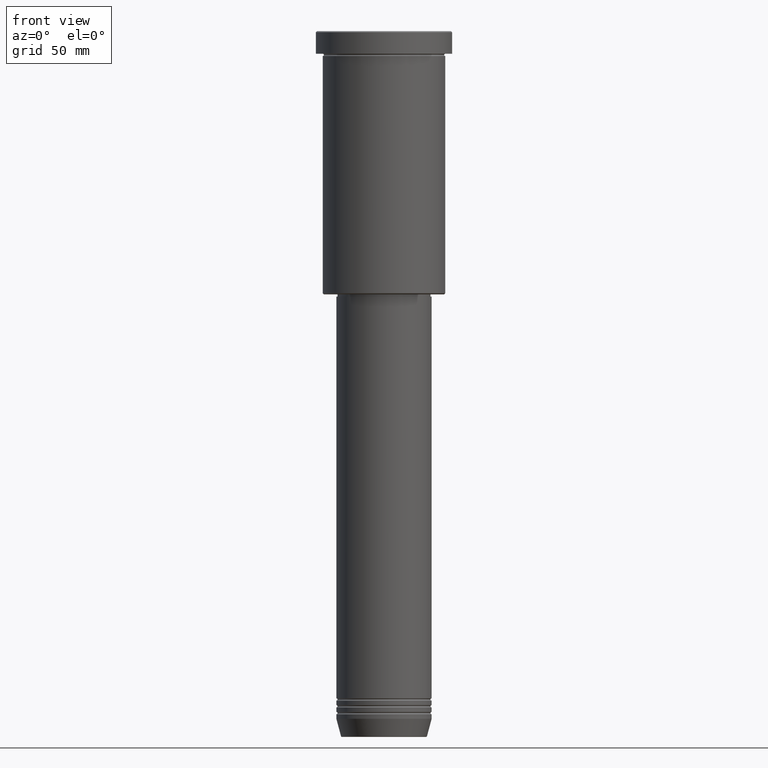
[diagram: clean part render]
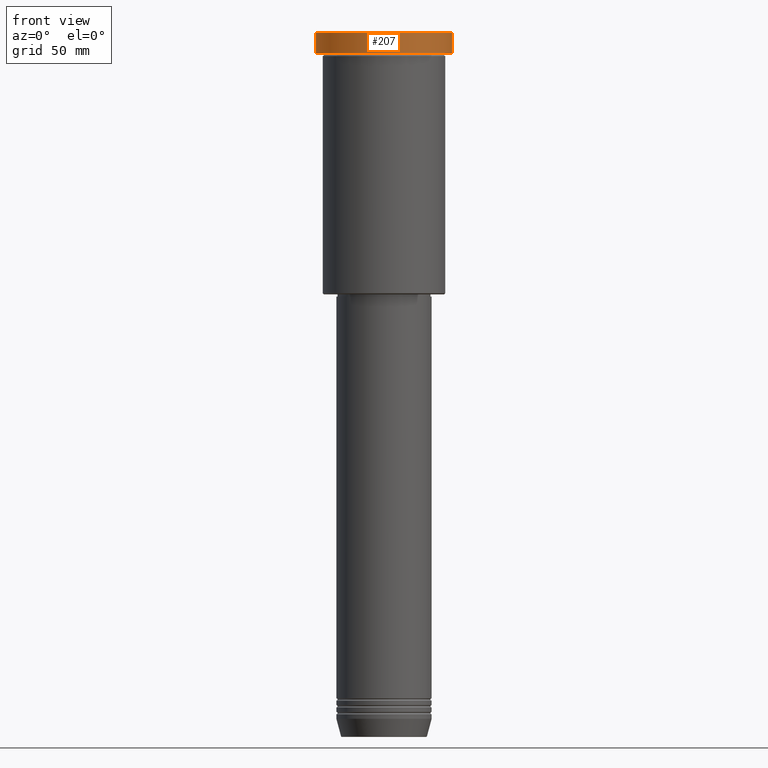
[diagram: same view with one face highlighted and labeled with its STEP entity id]
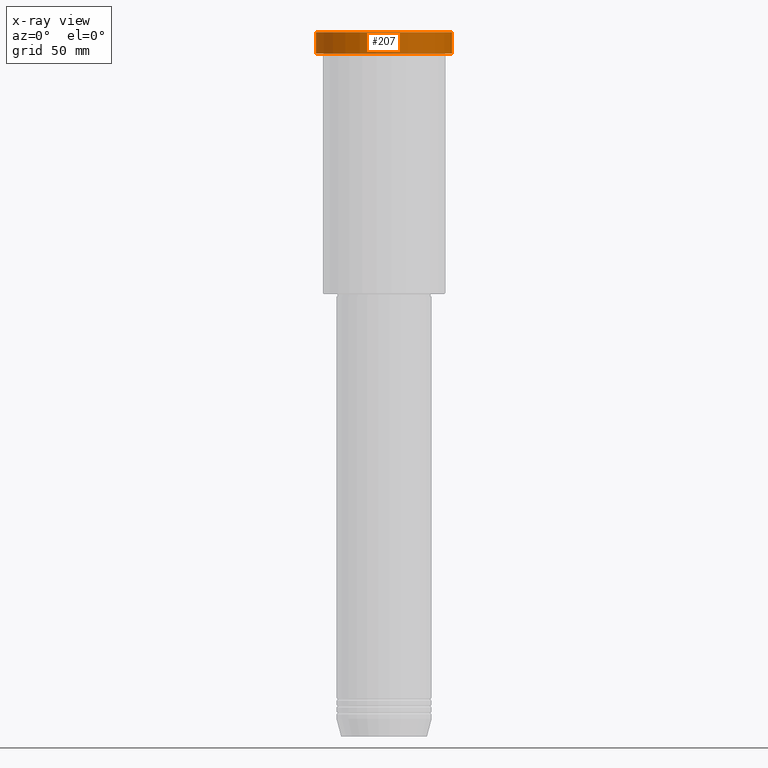
[diagram: x-ray of the same camera — body ghosted, the highlighted face saturated]
A machine part, front view. The second image highlights one B-rep face of the part: STEP entity #207.
The next image is the same camera in x-ray: the body ghosted, the highlighted face saturated — about 0% of this face is hidden behind the body in this view.
In plain terms, the highlighted cylindrical surface (partial cylindrical patch) has radius 30 mm, axis along (-0, -0, 1).
Its self-contained STEP definition (entity closure, byte-faithful):
#37 = DIRECTION ( 'NONE',  ( 1.000000000000000000, 0.000000000000000000, 0.000000000000000000 ) ) ;
#43 = DIRECTION ( 'NONE',  ( -0.000000000000000000, -0.000000000000000000, 1.000000000000000000 ) ) ;
#51 = CIRCLE ( 'NONE', #978, 30.00000000000000000 ) ;
#80 = CIRCLE ( 'NONE', #1104, 30.00000000000000000 ) ;
#146 = CARTESIAN_POINT ( 'NONE',  ( 30.00000000000000000, 0.000000000000000000, -0.5000000000000073275 ) ) ;
#179 = VERTEX_POINT ( 'NONE', #368 ) ;
#207 = ADVANCED_FACE ( 'NONE', ( #381 ), #488, .T. ) ;
#213 = CARTESIAN_POINT ( 'NONE',  ( -30.00000000000000000, 3.673940397442059178E-15, -0.5000000000000073275 ) ) ;
#227 = ORIENTED_EDGE ( 'NONE', *, *, #791, .F. ) ;
#241 = VERTEX_POINT ( 'NONE', #694 ) ;
#264 = DIRECTION ( 'NONE',  ( 1.000000000000000000, 0.000000000000000000, 0.000000000000000000 ) ) ;
#368 = CARTESIAN_POINT ( 'NONE',  ( -30.00000000000000000, 3.673940397442059178E-15, -9.999999999999992895 ) ) ;
#377 = VERTEX_POINT ( 'NONE', #146 ) ;
#378 = EDGE_CURVE ( 'NONE', #241, #377, #678, .T. ) ;
#381 = FACE_OUTER_BOUND ( 'NONE', #414, .T. ) ;
#407 = EDGE_CURVE ( 'NONE', #377, #971, #51, .T. ) ;
#414 = EDGE_LOOP ( 'NONE', ( #227, #617, #706, #793 ) ) ;
#443 = DIRECTION ( 'NONE',  ( 1.000000000000000000, 0.000000000000000000, 0.000000000000000000 ) ) ;
#450 = CARTESIAN_POINT ( 'NONE',  ( 0.000000000000000000, 0.000000000000000000, -9.999999999999992895 ) ) ;
#488 = CYLINDRICAL_SURFACE ( 'NONE', #1176, 30.00000000000000000 ) ;
#529 = DIRECTION ( 'NONE',  ( -0.000000000000000000, -0.000000000000000000, 1.000000000000000000 ) ) ;
#617 = ORIENTED_EDGE ( 'NONE', *, *, #785, .T. ) ;
#678 = LINE ( 'NONE', #945, #900 ) ;
#694 = CARTESIAN_POINT ( 'NONE',  ( 30.00000000000000000, 0.000000000000000000, -9.999999999999992895 ) ) ;
#706 = ORIENTED_EDGE ( 'NONE', *, *, #378, .T. ) ;
#725 = CARTESIAN_POINT ( 'NONE',  ( 0.000000000000000000, 0.000000000000000000, -0.5000000000000073275 ) ) ;
#743 = CARTESIAN_POINT ( 'NONE',  ( -30.00000000000000000, 3.673940397442059178E-15, 0.000000000000000000 ) ) ;
#785 = EDGE_CURVE ( 'NONE', #179, #241, #80, .T. ) ;
#791 = EDGE_CURVE ( 'NONE', #179, #971, #820, .T. ) ;
#793 = ORIENTED_EDGE ( 'NONE', *, *, #407, .T. ) ;
#820 = LINE ( 'NONE', #743, #988 ) ;
#826 = DIRECTION ( 'NONE',  ( -0.000000000000000000, -0.000000000000000000, 1.000000000000000000 ) ) ;
#852 = CARTESIAN_POINT ( 'NONE',  ( 0.000000000000000000, 0.000000000000000000, 0.000000000000000000 ) ) ;
#900 = VECTOR ( 'NONE', #43, 1000.000000000000000 ) ;
#945 = CARTESIAN_POINT ( 'NONE',  ( 30.00000000000000000, 0.000000000000000000, 0.000000000000000000 ) ) ;
#971 = VERTEX_POINT ( 'NONE', #213 ) ;
#978 = AXIS2_PLACEMENT_3D ( 'NONE', #725, #1079, #264 ) ;
#988 = VECTOR ( 'NONE', #529, 1000.000000000000000 ) ;
#1029 = DIRECTION ( 'NONE',  ( -0.000000000000000000, -0.000000000000000000, 1.000000000000000000 ) ) ;
#1079 = DIRECTION ( 'NONE',  ( 0.000000000000000000, 0.000000000000000000, -1.000000000000000000 ) ) ;
#1104 = AXIS2_PLACEMENT_3D ( 'NONE', #450, #826, #443 ) ;
#1176 = AXIS2_PLACEMENT_3D ( 'NONE', #852, #1029, #37 ) ;